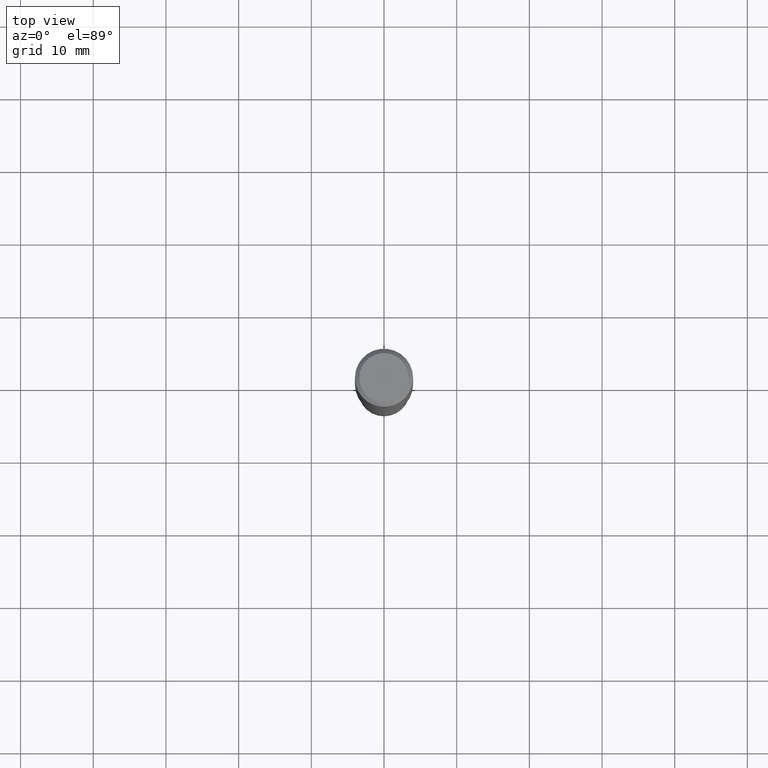
[diagram: clean part render]
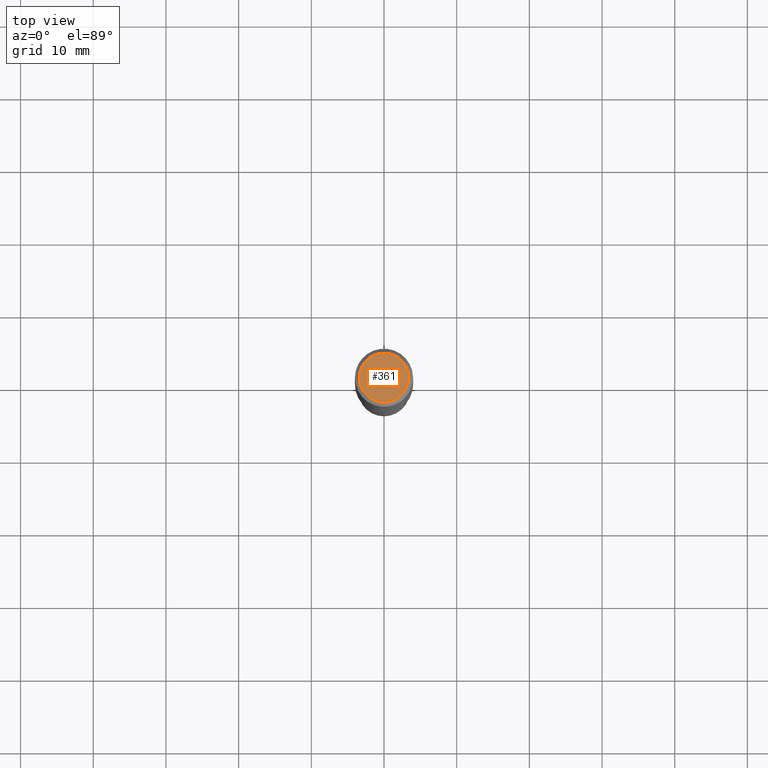
[diagram: same view with one face highlighted and labeled with its STEP entity id]
A machine part, top view. The second image highlights one B-rep face of the part: STEP entity #361.
In plain terms, the highlighted planar face has unit normal (0, -0, -1).
Its self-contained STEP definition (entity closure, byte-faithful):
#9 = EDGE_CURVE ( 'NONE', #362, #246, #190, .T. ) ;
#82 = DIRECTION ( 'NONE',  ( 1.000000000000000000, -6.982962677686266711E-15, 4.876170806578254279E-29 ) ) ;
#85 = EDGE_CURVE ( 'NONE', #246, #362, #439, .T. ) ;
#87 = FACE_OUTER_BOUND ( 'NONE', #397, .T. ) ;
#102 = ORIENTED_EDGE ( 'NONE', *, *, #85, .T. ) ;
#137 = DIRECTION ( 'NONE',  ( -2.445468806185136597E-29, 3.491481338843145583E-15, 1.000000000000000000 ) ) ;
#138 = DIRECTION ( 'NONE',  ( -1.000000000000000000, 6.982962677686265922E-15, -4.876176775795935793E-29 ) ) ;
#150 = CARTESIAN_POINT ( 'NONE',  ( -1.002970424325032604E-46, 1.431975951230895391E-32, 4.101342130344482109E-18 ) ) ;
#161 = AXIS2_PLACEMENT_3D ( 'NONE', #455, #137, #320 ) ;
#190 = CIRCLE ( 'NONE', #161, 0.1338749999999999940 ) ;
#217 = CARTESIAN_POINT ( 'NONE',  ( -0.1338749999999999940, 9.760872517903331886E-16, 4.101342130337800673E-18 ) ) ;
#246 = VERTEX_POINT ( 'NONE', #305 ) ;
#305 = CARTESIAN_POINT ( 'NONE',  ( 0.1338749999999999940, -1.040731925365424925E-15, 4.101342130351390035E-18 ) ) ;
#319 = AXIS2_PLACEMENT_3D ( 'NONE', #150, #437, #82 ) ;
#320 = DIRECTION ( 'NONE',  ( 1.000000000000000000, -6.982962677686266711E-15, 4.876170806578254279E-29 ) ) ;
#360 = AXIS2_PLACEMENT_3D ( 'NONE', #392, #423, #138 ) ;
#361 = ADVANCED_FACE ( 'NONE', ( #87 ), #377, .F. ) ;
#362 = VERTEX_POINT ( 'NONE', #217 ) ;
#377 = PLANE ( 'NONE',  #360 ) ;
#392 = CARTESIAN_POINT ( 'NONE',  ( -5.014852121625163022E-47, 7.159879756154476955E-33, 2.050671065172241055E-18 ) ) ;
#397 = EDGE_LOOP ( 'NONE', ( #424, #102 ) ) ;
#423 = DIRECTION ( 'NONE',  ( 2.438088387897960049E-29, -3.491481338843145188E-15, -1.000000000000000000 ) ) ;
#424 = ORIENTED_EDGE ( 'NONE', *, *, #9, .T. ) ;
#437 = DIRECTION ( 'NONE',  ( -2.445468806185136597E-29, 3.491481338843145583E-15, 1.000000000000000000 ) ) ;
#439 = CIRCLE ( 'NONE', #319, 0.1338749999999999940 ) ;
#455 = CARTESIAN_POINT ( 'NONE',  ( -1.002970424325032604E-46, 1.431975951230895391E-32, 4.101342130344482109E-18 ) ) ;